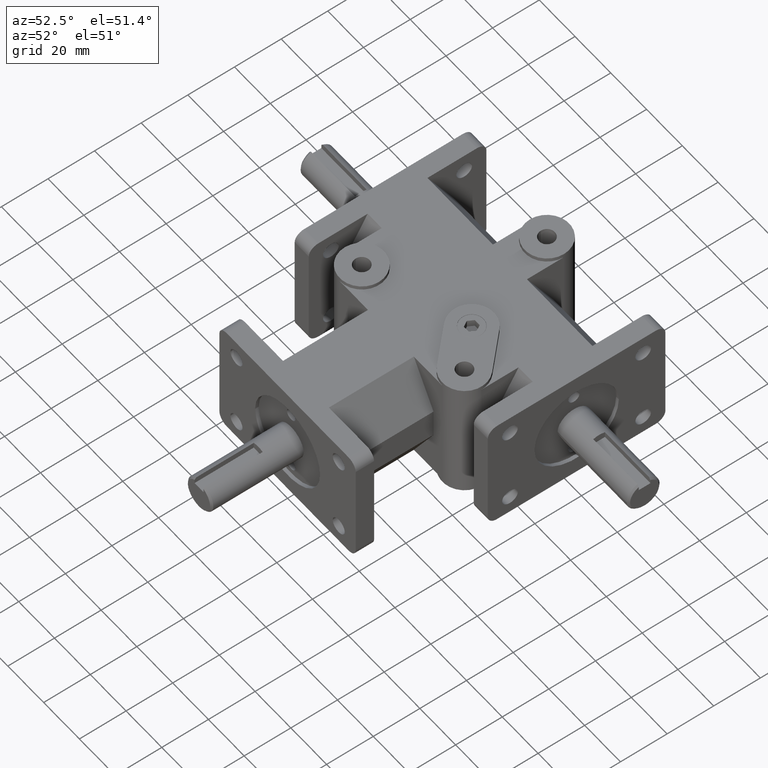
[diagram: clean part render]
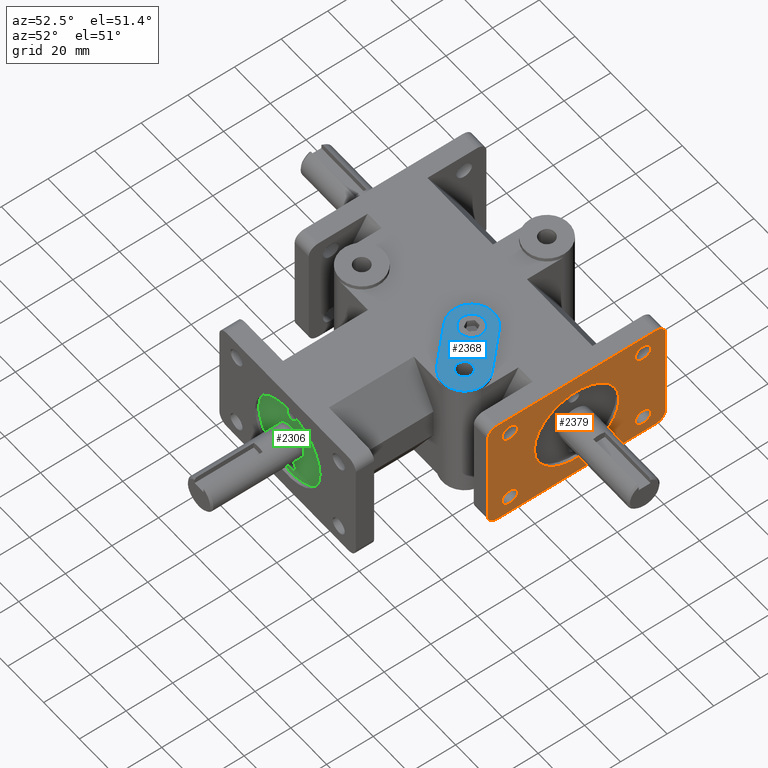
[diagram: same view with three faces highlighted in distinct colors, each labeled with its STEP entity id]
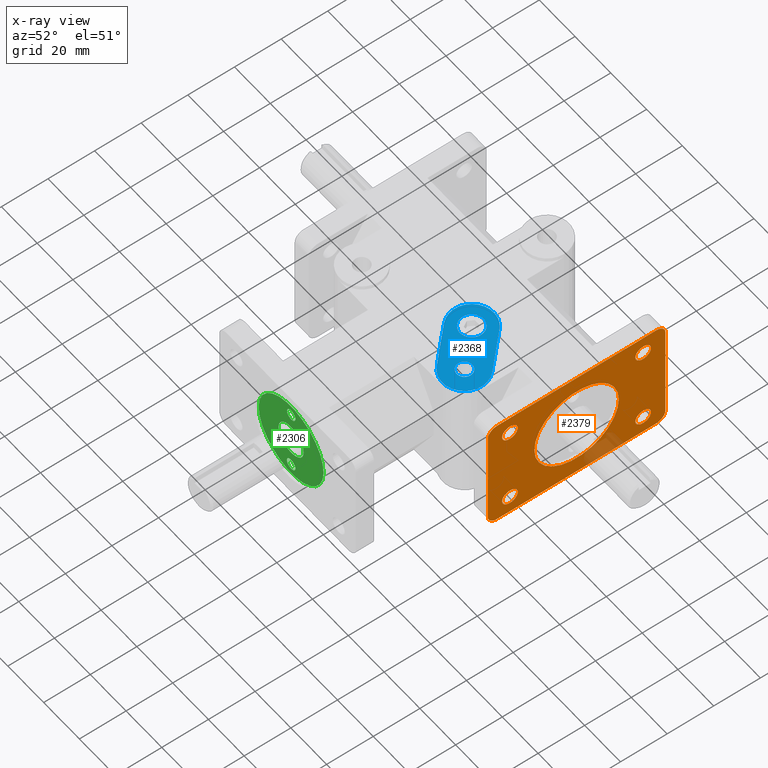
[diagram: x-ray of the same camera — body ghosted, the three highlighted faces saturated]
A machine part, auxiliary view with three faces highlighted in distinct colors.
The next image is the same camera in x-ray (body ghosted, the three faces saturated) — at least one of them is partly hidden behind the body in this view.
Their STEP definitions:

[orange] entity #2379 — the highlighted planar face has unit normal (1, 0, 0).
#45=FACE_BOUND('',#420,.T.);
#46=FACE_BOUND('',#421,.T.);
#47=FACE_BOUND('',#422,.T.);
#48=FACE_BOUND('',#423,.T.);
#49=FACE_BOUND('',#424,.T.);
#133=PLANE('',#2628);
#260=FACE_OUTER_BOUND('',#419,.T.);
#419=EDGE_LOOP('',(#2099,#2100,#2101,#2102,#2103,#2104,#2105,#2106));
#420=EDGE_LOOP('',(#2107));
#421=EDGE_LOOP('',(#2108));
#422=EDGE_LOOP('',(#2109));
#423=EDGE_LOOP('',(#2110));
#424=EDGE_LOOP('',(#2111));
#549=LINE('',#3715,#771);
#574=LINE('',#3774,#796);
#654=LINE('',#3999,#876);
#655=LINE('',#4001,#877);
#771=VECTOR('',#2994,1.);
#796=VECTOR('',#3039,1.);
#876=VECTOR('',#3283,1.);
#877=VECTOR('',#3286,1.);
#910=CIRCLE('',#2440,18.1356);
#937=CIRCLE('',#2497,4.064);
#939=CIRCLE('',#2500,4.064);
#941=CIRCLE('',#2503,4.064);
#943=CIRCLE('',#2506,4.064);
#977=CIRCLE('',#2562,3.3655);
#978=CIRCLE('',#2564,3.3655);
#979=CIRCLE('',#2566,3.3655);
#980=CIRCLE('',#2568,3.3655);
#1016=VERTEX_POINT('',#3391);
#1072=VERTEX_POINT('',#3565);
#1073=VERTEX_POINT('',#3566);
#1076=VERTEX_POINT('',#3574);
#1077=VERTEX_POINT('',#3575);
#1080=VERTEX_POINT('',#3583);
#1081=VERTEX_POINT('',#3584);
#1084=VERTEX_POINT('',#3592);
#1085=VERTEX_POINT('',#3593);
#1180=VERTEX_POINT('',#3836);
#1181=VERTEX_POINT('',#3840);
#1182=VERTEX_POINT('',#3844);
#1183=VERTEX_POINT('',#3848);
#1244=EDGE_CURVE('',#1016,#1016,#910,.T.);
#1320=EDGE_CURVE('',#1072,#1073,#937,.T.);
#1324=EDGE_CURVE('',#1076,#1077,#939,.T.);
#1328=EDGE_CURVE('',#1080,#1081,#941,.T.);
#1332=EDGE_CURVE('',#1084,#1085,#943,.T.);
#1394=EDGE_CURVE('',#1084,#1073,#549,.T.);
#1427=EDGE_CURVE('',#1076,#1081,#574,.T.);
#1458=EDGE_CURVE('',#1180,#1180,#977,.T.);
#1460=EDGE_CURVE('',#1181,#1181,#978,.T.);
#1462=EDGE_CURVE('',#1182,#1182,#979,.T.);
#1464=EDGE_CURVE('',#1183,#1183,#980,.T.);
#1537=EDGE_CURVE('',#1072,#1077,#654,.T.);
#1538=EDGE_CURVE('',#1085,#1080,#655,.T.);
#2099=ORIENTED_EDGE('',*,*,#1320,.F.);
#2100=ORIENTED_EDGE('',*,*,#1537,.T.);
#2101=ORIENTED_EDGE('',*,*,#1324,.F.);
#2102=ORIENTED_EDGE('',*,*,#1427,.T.);
#2103=ORIENTED_EDGE('',*,*,#1328,.F.);
#2104=ORIENTED_EDGE('',*,*,#1538,.F.);
#2105=ORIENTED_EDGE('',*,*,#1332,.F.);
#2106=ORIENTED_EDGE('',*,*,#1394,.T.);
#2107=ORIENTED_EDGE('',*,*,#1458,.T.);
#2108=ORIENTED_EDGE('',*,*,#1460,.T.);
#2109=ORIENTED_EDGE('',*,*,#1462,.T.);
#2110=ORIENTED_EDGE('',*,*,#1464,.T.);
#2111=ORIENTED_EDGE('',*,*,#1244,.T.);
#2379=ADVANCED_FACE('',(#260,#45,#46,#47,#48,#49),#133,.T.);
#2440=AXIS2_PLACEMENT_3D('',#3392,#2712,#2713);
#2497=AXIS2_PLACEMENT_3D('',#3567,#2869,#2870);
#2500=AXIS2_PLACEMENT_3D('',#3576,#2877,#2878);
#2503=AXIS2_PLACEMENT_3D('',#3585,#2885,#2886);
#2506=AXIS2_PLACEMENT_3D('',#3594,#2893,#2894);
#2562=AXIS2_PLACEMENT_3D('',#3837,#3097,#3098);
#2564=AXIS2_PLACEMENT_3D('',#3841,#3102,#3103);
#2566=AXIS2_PLACEMENT_3D('',#3845,#3107,#3108);
#2568=AXIS2_PLACEMENT_3D('',#3849,#3112,#3113);
#2628=AXIS2_PLACEMENT_3D('',#4000,#3284,#3285);
#2712=DIRECTION('center_axis',(-1.,0.,0.));
#2713=DIRECTION('ref_axis',(0.,-1.,0.));
#2869=DIRECTION('center_axis',(-1.,0.,0.));
#2870=DIRECTION('ref_axis',(0.,-0.707106781186548,0.707106781186548));
#2877=DIRECTION('center_axis',(-1.,0.,0.));
#2878=DIRECTION('ref_axis',(0.,-0.707106781186548,-0.707106781186548));
#2885=DIRECTION('center_axis',(-1.,0.,0.));
#2886=DIRECTION('ref_axis',(0.,0.707106781186548,-0.707106781186548));
#2893=DIRECTION('center_axis',(-1.,0.,0.));
#2894=DIRECTION('ref_axis',(0.,0.707106781186548,0.707106781186548));
#2994=DIRECTION('',(0.,-1.,0.));
#3039=DIRECTION('',(0.,1.,0.));
#3097=DIRECTION('center_axis',(-1.,0.,0.));
#3098=DIRECTION('ref_axis',(0.,1.,0.));
#3102=DIRECTION('center_axis',(-1.,0.,0.));
#3103=DIRECTION('ref_axis',(0.,1.,0.));
#3107=DIRECTION('center_axis',(-1.,0.,0.));
#3108=DIRECTION('ref_axis',(0.,1.,0.));
#3112=DIRECTION('center_axis',(-1.,0.,0.));
#3113=DIRECTION('ref_axis',(0.,1.,0.));
#3283=DIRECTION('',(0.,0.,-1.));
#3284=DIRECTION('center_axis',(1.,0.,0.));
#3285=DIRECTION('ref_axis',(0.,-1.,0.));
#3286=DIRECTION('',(0.,0.,-1.));
#3391=CARTESIAN_POINT('',(53.975,100.6856,-2.22097044906167E-15));
#3392=CARTESIAN_POINT('Origin',(53.975,82.55,0.));
#3565=CARTESIAN_POINT('',(53.975,44.45,21.336));
#3566=CARTESIAN_POINT('',(53.975,48.514,25.4));
#3567=CARTESIAN_POINT('Origin',(53.975,48.514,21.336));
#3574=CARTESIAN_POINT('',(53.975,48.514,-25.4));
#3575=CARTESIAN_POINT('',(53.975,44.45,-21.336));
#3576=CARTESIAN_POINT('Origin',(53.975,48.514,-21.336));
#3583=CARTESIAN_POINT('',(53.975,120.65,-21.336));
#3584=CARTESIAN_POINT('',(53.975,116.586,-25.4));
#3585=CARTESIAN_POINT('Origin',(53.975,116.586,-21.336));
#3592=CARTESIAN_POINT('',(53.975,116.586,25.4));
#3593=CARTESIAN_POINT('',(53.975,120.65,21.336));
#3594=CARTESIAN_POINT('Origin',(53.975,116.586,21.336));
#3715=CARTESIAN_POINT('',(53.975,44.45,25.4));
#3774=CARTESIAN_POINT('',(53.975,44.45,-25.4));
#3836=CARTESIAN_POINT('',(53.975,107.7595,-17.4625));
#3837=CARTESIAN_POINT('Origin',(53.975,111.125,-17.4625));
#3840=CARTESIAN_POINT('',(53.975,107.7595,17.4625));
#3841=CARTESIAN_POINT('Origin',(53.975,111.125,17.4625));
#3844=CARTESIAN_POINT('',(53.975,50.6095,17.4625));
#3845=CARTESIAN_POINT('Origin',(53.975,53.975,17.4625));
#3848=CARTESIAN_POINT('',(53.975,50.6095,-17.4625));
#3849=CARTESIAN_POINT('Origin',(53.975,53.975,-17.4625));
#3999=CARTESIAN_POINT('',(53.975,44.45,0.));
#4000=CARTESIAN_POINT('Origin',(53.975,44.45,0.));
#4001=CARTESIAN_POINT('',(53.975,120.65,0.));

[blue] entity #2368 — the highlighted planar face has unit normal (0, 0, 1).
#38=FACE_BOUND('',#402,.T.);
#39=FACE_BOUND('',#403,.T.);
#122=PLANE('',#2613);
#249=FACE_OUTER_BOUND('',#401,.T.);
#401=EDGE_LOOP('',(#2059,#2060,#2061,#2062));
#402=EDGE_LOOP('',(#2063));
#403=EDGE_LOOP('',(#2064));
#644=LINE('',#3961,#866);
#648=LINE('',#3970,#870);
#866=VECTOR('',#3231,1.);
#870=VECTOR('',#3241,1.);
#975=CIRCLE('',#2557,5.07999999999998);
#992=CIRCLE('',#2602,3.3655);
#995=CIRCLE('',#2608,9.525);
#997=CIRCLE('',#2612,9.525);
#1178=VERTEX_POINT('',#3827);
#1211=VERTEX_POINT('',#3948);
#1214=VERTEX_POINT('',#3958);
#1215=VERTEX_POINT('',#3960);
#1216=VERTEX_POINT('',#3964);
#1217=VERTEX_POINT('',#3968);
#1455=EDGE_CURVE('',#1178,#1178,#975,.T.);
#1515=EDGE_CURVE('',#1211,#1211,#992,.T.);
#1520=EDGE_CURVE('',#1214,#1215,#644,.T.);
#1523=EDGE_CURVE('',#1216,#1214,#995,.T.);
#1525=EDGE_CURVE('',#1217,#1216,#648,.T.);
#1529=EDGE_CURVE('',#1215,#1217,#997,.T.);
#2059=ORIENTED_EDGE('',*,*,#1529,.F.);
#2060=ORIENTED_EDGE('',*,*,#1520,.F.);
#2061=ORIENTED_EDGE('',*,*,#1523,.F.);
#2062=ORIENTED_EDGE('',*,*,#1525,.F.);
#2063=ORIENTED_EDGE('',*,*,#1455,.T.);
#2064=ORIENTED_EDGE('',*,*,#1515,.T.);
#2368=ADVANCED_FACE('',(#249,#38,#39),#122,.T.);
#2557=AXIS2_PLACEMENT_3D('',#3829,#3086,#3087);
#2602=AXIS2_PLACEMENT_3D('',#3950,#3219,#3220);
#2608=AXIS2_PLACEMENT_3D('',#3966,#3236,#3237);
#2612=AXIS2_PLACEMENT_3D('',#3976,#3248,#3249);
#2613=AXIS2_PLACEMENT_3D('',#3978,#3251,#3252);
#3086=DIRECTION('center_axis',(0.,0.,-1.));
#3087=DIRECTION('ref_axis',(-1.,0.,0.));
#3219=DIRECTION('center_axis',(0.,0.,-1.));
#3220=DIRECTION('ref_axis',(1.,0.,0.));
#3231=DIRECTION('',(0.707106781186548,-0.707106781186547,0.));
#3236=DIRECTION('center_axis',(0.,0.,-1.));
#3237=DIRECTION('ref_axis',(1.,0.,0.));
#3241=DIRECTION('',(-0.707106781186547,0.707106781186548,0.));
#3248=DIRECTION('center_axis',(0.,0.,-1.));
#3249=DIRECTION('ref_axis',(1.,0.,0.));
#3251=DIRECTION('center_axis',(0.,0.,1.));
#3252=DIRECTION('ref_axis',(-1.,0.,0.));
#3827=CARTESIAN_POINT('',(20.32,67.31,27.051));
#3829=CARTESIAN_POINT('Origin',(15.24,67.31,27.051));
#3948=CARTESIAN_POINT('',(25.3365,53.848,27.051));
#3950=CARTESIAN_POINT('Origin',(28.702,53.848,27.051));
#3958=CARTESIAN_POINT('',(21.9751920908018,74.0451920908019,27.051));
#3960=CARTESIAN_POINT('',(35.4371920908019,60.5831920908019,27.051));
#3961=CARTESIAN_POINT('',(35.4371920908019,60.5831920908019,27.051));
#3964=CARTESIAN_POINT('',(8.50480790919812,60.5748079091981,27.051));
#3966=CARTESIAN_POINT('Origin',(15.24,67.31,27.051));
#3968=CARTESIAN_POINT('',(21.9668079091981,47.1128079091982,27.051));
#3970=CARTESIAN_POINT('',(21.9668079091981,47.1128079091981,27.051));
#3976=CARTESIAN_POINT('Origin',(28.702,53.848,27.051));
#3978=CARTESIAN_POINT('Origin',(29.5679090909091,53.848,27.051));

[green] entity #2306 — the highlighted planar face has unit normal (0, 1, 0).
#18=FACE_BOUND('',#320,.T.);
#19=FACE_BOUND('',#321,.T.);
#20=FACE_BOUND('',#322,.T.);
#91=PLANE('',#2482);
#187=FACE_OUTER_BOUND('',#319,.T.);
#319=EDGE_LOOP('',(#1708));
#320=EDGE_LOOP('',(#1709));
#321=EDGE_LOOP('',(#1710));
#322=EDGE_LOOP('',(#1711));
#904=CIRCLE('',#2429,2.3749);
#906=CIRCLE('',#2433,2.3749);
#913=CIRCLE('',#2444,18.1356);
#921=CIRCLE('',#2464,7.);
#1010=VERTEX_POINT('',#3371);
#1012=VERTEX_POINT('',#3378);
#1019=VERTEX_POINT('',#3399);
#1043=VERTEX_POINT('',#3477);
#1235=EDGE_CURVE('',#1010,#1010,#904,.T.);
#1238=EDGE_CURVE('',#1012,#1012,#906,.T.);
#1249=EDGE_CURVE('',#1019,#1019,#913,.T.);
#1283=EDGE_CURVE('',#1043,#1043,#921,.T.);
#1708=ORIENTED_EDGE('',*,*,#1249,.T.);
#1709=ORIENTED_EDGE('',*,*,#1283,.T.);
#1710=ORIENTED_EDGE('',*,*,#1235,.T.);
#1711=ORIENTED_EDGE('',*,*,#1238,.T.);
#2306=ADVANCED_FACE('',(#187,#18,#19,#20),#91,.F.);
#2429=AXIS2_PLACEMENT_3D('',#3372,#2687,#2688);
#2433=AXIS2_PLACEMENT_3D('',#3379,#2696,#2697);
#2444=AXIS2_PLACEMENT_3D('',#3401,#2722,#2723);
#2464=AXIS2_PLACEMENT_3D('',#3479,#2784,#2785);
#2482=AXIS2_PLACEMENT_3D('',#3526,#2831,#2832);
#2687=DIRECTION('center_axis',(0.,1.,0.));
#2688=DIRECTION('ref_axis',(1.,0.,0.));
#2696=DIRECTION('center_axis',(0.,1.,0.));
#2697=DIRECTION('ref_axis',(1.,0.,0.));
#2722=DIRECTION('center_axis',(0.,-1.,0.));
#2723=DIRECTION('ref_axis',(1.,0.,0.));
#2784=DIRECTION('center_axis',(0.,1.,0.));
#2785=DIRECTION('ref_axis',(1.,0.,0.));
#2831=DIRECTION('center_axis',(0.,1.,0.));
#2832=DIRECTION('ref_axis',(0.,0.,-1.));
#3371=CARTESIAN_POINT('',(-2.3749,1.524,-13.462));
#3372=CARTESIAN_POINT('Origin',(-2.47284761027353E-15,1.524,-13.462));
#3378=CARTESIAN_POINT('',(-2.3749,1.524,13.462));
#3379=CARTESIAN_POINT('Origin',(4.12141268378921E-15,1.524,13.462));
#3399=CARTESIAN_POINT('',(-18.1356,1.524,2.22097044906167E-15));
#3401=CARTESIAN_POINT('Origin',(0.,1.524,0.));
#3477=CARTESIAN_POINT('',(-7.,1.524,-8.57252759403147E-16));
#3479=CARTESIAN_POINT('Origin',(0.,1.524,0.));
#3526=CARTESIAN_POINT('Origin',(1.37390909090909,1.524,-2.08319265799052E-16));